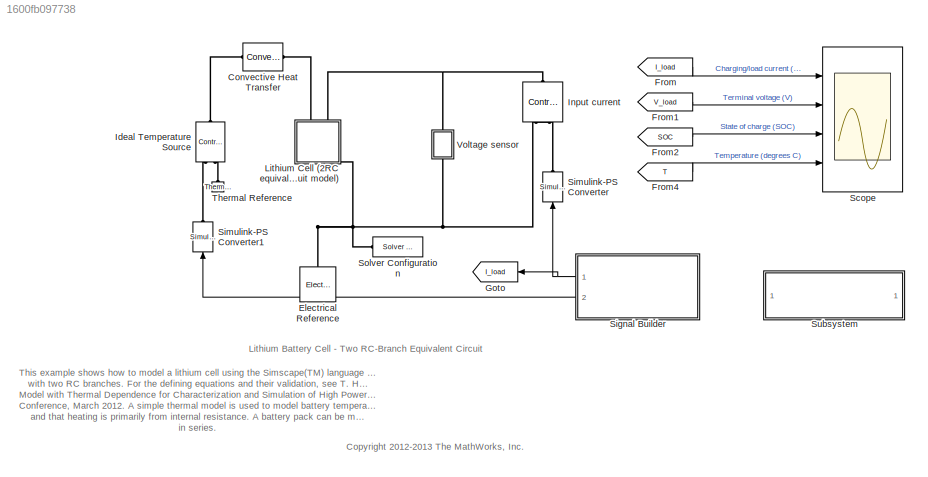
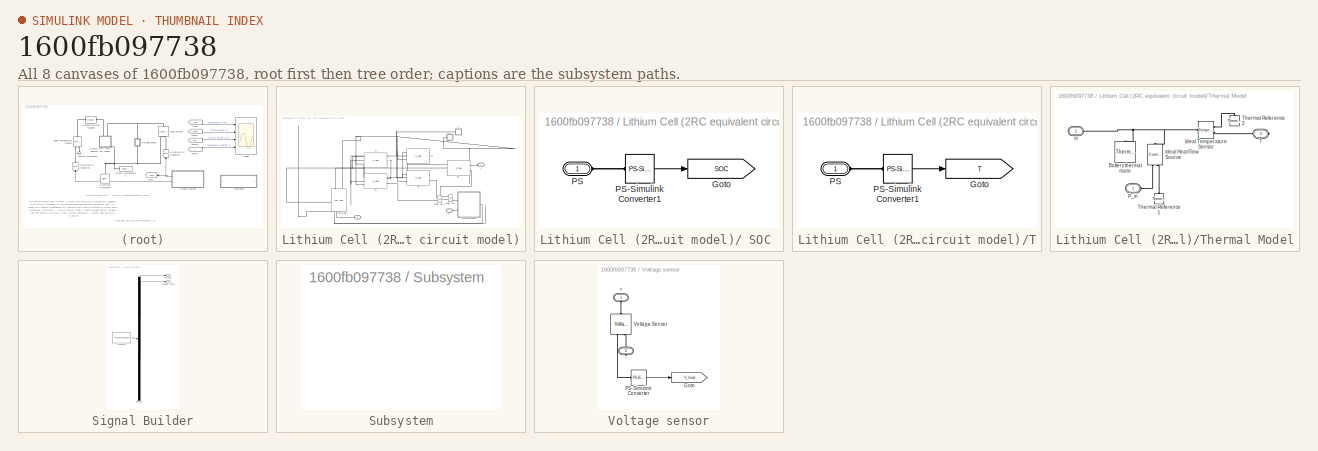
[diagram: thumbnail index - all 8 canvases of the model, root first then tree order]
MODEL slx_1600fb097738
KIND model
CONFIG AbsTol = auto
CONFIG EnableMultiTasking = on
CONFIG FixedStep = auto
CONFIG MaxStep = auto
CONFIG MinStep = auto
CONFIG PreLoadFcn = ssc_lithium_cell_2RC_ini
CONFIG RelTol = 1e-3
CONFIG SampleTimeConstraint = Unconstrained
CONFIG Solver = ode15s
CONFIG SolverName = ode15s
CONFIG StartTime = 0.0
CONFIG StopTime = 40000
BLOCK [Reference] Convective Heat Transfer  REF=fl_lib/Thermal/Thermal Elements/Convective Heat
Transfer
  Ports = [0, 0, 0, 0, 0, 1, 1]
  SourceBlock = fl_lib/Thermal/Thermal Elements/Convective Heat\nTransfer
  SourceProductBaseCode = SS
  SourceProductName = Simscape
  SourceType = Convective Heat\nTransfer
BLOCK [Reference] Electrical Reference  REF=fl_lib/Electrical/Electrical Elements/Electrical Reference
  Ports = [0, 0, 0, 0, 0, 1]
  SourceBlock = fl_lib/Electrical/Electrical Elements/Electrical Reference
  SourceProductBaseCode = SS
  SourceProductName = Simscape
  SourceType = Electrical Reference
BLOCK [From] From
  GotoTag = I_load
  TagVisibility = global
BLOCK [From] From1
  GotoTag = V_load
  TagVisibility = global
BLOCK [From] From2
  GotoTag = SOC
  TagVisibility = global
BLOCK [From] From4
  GotoTag = T
  TagVisibility = global
BLOCK [Goto] Goto
  GotoTag = I_load
  TagVisibility = global
BLOCK [Reference] Ideal Temperature Source  REF=fl_lib/Thermal/Thermal Sources/Controlled
Temperature Source
  Ports = [0, 0, 0, 0, 0, 1, 2]
  SourceBlock = fl_lib/Thermal/Thermal Sources/Controlled\nTemperature Source
  SourceProductBaseCode = SS
  SourceProductName = Simscape
  SourceType = Controlled\nTemperature Source
BLOCK [Reference] Input current  REF=fl_lib/Electrical/Electrical Sources/Controlled Current
Source
  Ports = [0, 0, 0, 0, 0, 1, 2]
  SourceBlock = fl_lib/Electrical/Electrical Sources/Controlled Current\nSource
  SourceProductBaseCode = SS
  SourceProductName = Simscape
  SourceType = Controlled Current\nSource
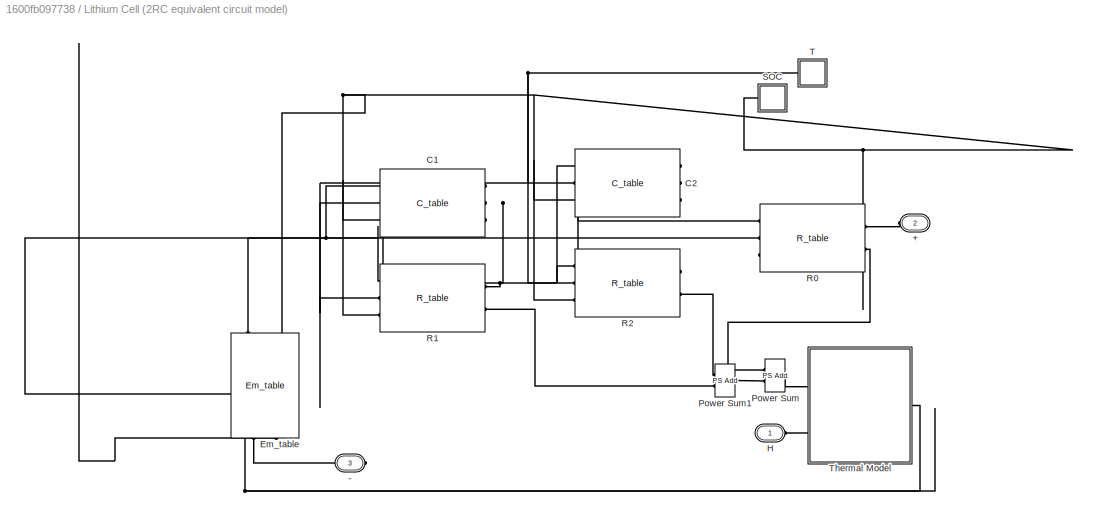
BLOCK [SubSystem] Lithium Cell (2RC equivalent circuit model)
  Ports = [0, 0, 0, 0, 0, 2, 1]
  RequestExecContextInheritance = off
BLOCK [SubSystem] Lithium Cell (2RC equivalent circuit model)/ SOC 
  Ports = [0, 0, 0, 0, 0, 1]
  RequestExecContextInheritance = off
BLOCK [Goto] Lithium Cell (2RC equivalent circuit model)/ SOC /Goto
  GotoTag = SOC
  TagVisibility = global
BLOCK [PMIOPort] Lithium Cell (2RC equivalent circuit model)/ SOC /PS
  Side = Left
BLOCK [Reference] Lithium Cell (2RC equivalent circuit model)/ SOC /PS-Simulink Converter1  REF=nesl_utility/PS-Simulink
Converter
  Ports = [0, 1, 0, 0, 0, 1]
  SourceBlock = nesl_utility/PS-Simulink\nConverter
  SourceProductBaseCode = SS
  SourceProductName = Simscape
  SourceType = PS-Simulink\nConverter
BLOCK [PMIOPort] Lithium Cell (2RC equivalent circuit model)/+
  Port = 2
  Side = Left
  Tag = PMCPort
BLOCK [PMIOPort] Lithium Cell (2RC equivalent circuit model)/-
  Port = 3
  Side = Right
  Tag = PMCPort
BLOCK [Reference] Lithium Cell (2RC equivalent circuit model)/C1  REF=LiBatteryElements_lib/C_table
  Ports = [0, 0, 0, 0, 0, 3, 1]
  SourceBlock = LiBatteryElements_lib/C_table
  SourceType = C_table
BLOCK [Reference] Lithium Cell (2RC equivalent circuit model)/C2  REF=LiBatteryElements_lib/C_table
  Ports = [0, 0, 0, 0, 0, 3, 1]
  SourceBlock = LiBatteryElements_lib/C_table
  SourceType = C_table
BLOCK [Reference] Lithium Cell (2RC equivalent circuit model)/Em_table  REF=LiBatteryElements_lib/Em_table
  Ports = [0, 0, 0, 0, 0, 3, 2]
  SourceBlock = LiBatteryElements_lib/Em_table
  SourceType = Em_table
BLOCK [PMIOPort] Lithium Cell (2RC equivalent circuit model)/H
  Side = Left
  Tag = PMCPort
BLOCK [Reference] Lithium Cell (2RC equivalent circuit model)/Power Sum  REF=fl_ps_legacy_lib/Legacy Physical
Signals/Functions/PS Add
  Ports = [0, 0, 0, 0, 0, 2, 1]
  SourceBlock = fl_ps_legacy_lib/Legacy Physical\nSignals/Functions/PS Add
  SourceProductBaseCode = SS
  SourceProductName = Simscape
  SourceType = PS Add
BLOCK [Reference] Lithium Cell (2RC equivalent circuit model)/Power Sum1  REF=fl_ps_legacy_lib/Legacy Physical
Signals/Functions/PS Add
  Ports = [0, 0, 0, 0, 0, 2, 1]
  SourceBlock = fl_ps_legacy_lib/Legacy Physical\nSignals/Functions/PS Add
  SourceProductBaseCode = SS
  SourceProductName = Simscape
  SourceType = PS Add
BLOCK [Reference] Lithium Cell (2RC equivalent circuit model)/R0  REF=LiBatteryElements_lib/R_table
  Ports = [0, 0, 0, 0, 0, 3, 2]
  SourceBlock = LiBatteryElements_lib/R_table
  SourceType = R_table
BLOCK [Reference] Lithium Cell (2RC equivalent circuit model)/R1  REF=LiBatteryElements_lib/R_table
  Ports = [0, 0, 0, 0, 0, 3, 2]
  SourceBlock = LiBatteryElements_lib/R_table
  SourceType = R_table
BLOCK [Reference] Lithium Cell (2RC equivalent circuit model)/R2  REF=LiBatteryElements_lib/R_table
  Ports = [0, 0, 0, 0, 0, 3, 2]
  SourceBlock = LiBatteryElements_lib/R_table
  SourceType = R_table
BLOCK [SubSystem] Lithium Cell (2RC equivalent circuit model)/T
  Ports = [0, 0, 0, 0, 0, 1]
  RequestExecContextInheritance = off
BLOCK [Goto] Lithium Cell (2RC equivalent circuit model)/T/Goto
  GotoTag = T
  TagVisibility = global
BLOCK [PMIOPort] Lithium Cell (2RC equivalent circuit model)/T/PS
  Side = Left
BLOCK [Reference] Lithium Cell (2RC equivalent circuit model)/T/PS-Simulink Converter1  REF=nesl_utility/PS-Simulink
Converter
  Ports = [0, 1, 0, 0, 0, 1]
  SourceBlock = nesl_utility/PS-Simulink\nConverter
  SourceProductBaseCode = SS
  SourceProductName = Simscape
  SourceType = PS-Simulink\nConverter
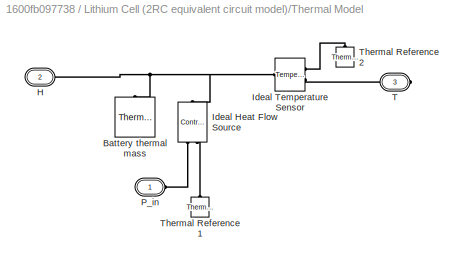
BLOCK [SubSystem] Lithium Cell (2RC equivalent circuit model)/Thermal Model
  Ports = [0, 0, 0, 0, 0, 2, 1]
  RequestExecContextInheritance = off
BLOCK [Reference] Lithium Cell (2RC equivalent circuit model)/Thermal Model/Battery thermal mass  REF=fl_lib/Thermal/Thermal Elements/Thermal Mass
  Ports = [0, 0, 0, 0, 0, 1]
  SourceBlock = fl_lib/Thermal/Thermal Elements/Thermal Mass
  SourceProductBaseCode = SS
  SourceProductName = Simscape
  SourceType = Thermal Mass
BLOCK [PMIOPort] Lithium Cell (2RC equivalent circuit model)/Thermal Model/H
  Port = 2
  Side = Left
  Tag = PMCPort
BLOCK [Reference] Lithium Cell (2RC equivalent circuit model)/Thermal Model/Ideal Heat Flow Source  REF=fl_lib/Thermal/Thermal Sources/Controlled Heat Flow
Rate Source
  Ports = [0, 0, 0, 0, 0, 1, 2]
  SourceBlock = fl_lib/Thermal/Thermal Sources/Controlled Heat Flow\nRate Source
  SourceProductBaseCode = SS
  SourceProductName = Simscape
  SourceType = Controlled Heat Flow\nRate Source
BLOCK [Reference] Lithium Cell (2RC equivalent circuit model)/Thermal Model/Ideal Temperature Sensor  REF=fl_lib/Thermal/Thermal Sensors/Temperature Sensor
  Ports = [0, 0, 0, 0, 0, 1, 2]
  SourceBlock = fl_lib/Thermal/Thermal Sensors/Temperature Sensor
  SourceProductBaseCode = SS
  SourceProductName = Simscape
  SourceType = Temperature Sensor
BLOCK [PMIOPort] Lithium Cell (2RC equivalent circuit model)/Thermal Model/P_in
  Side = Left
  Tag = PMCPort
BLOCK [PMIOPort] Lithium Cell (2RC equivalent circuit model)/Thermal Model/T
  Port = 3
  Side = Right
  Tag = PMCPort
BLOCK [Reference] Lithium Cell (2RC equivalent circuit model)/Thermal Model/Thermal Reference1  REF=fl_lib/Thermal/Thermal Elements/Thermal Reference
  Ports = [0, 0, 0, 0, 0, 1]
  SourceBlock = fl_lib/Thermal/Thermal Elements/Thermal Reference
  SourceProductBaseCode = SS
  SourceProductName = Simscape
  SourceType = Thermal Reference
BLOCK [Reference] Lithium Cell (2RC equivalent circuit model)/Thermal Model/Thermal Reference2  REF=fl_lib/Thermal/Thermal Elements/Thermal Reference
  Ports = [0, 0, 0, 0, 0, 1]
  SourceBlock = fl_lib/Thermal/Thermal Elements/Thermal Reference
  SourceProductBaseCode = SS
  SourceProductName = Simscape
  SourceType = Thermal Reference
BLOCK [Scope] Scope
  Floating = off
  NumInputPorts = 4
  Ports = [4]
  ScopeSpecificationString = C++SS(StrPVP('Location','[840, 52, 1370, 763]'),StrPVP('Open','off'),MxPVP('AxesTitles',54,'struct(''axes1'',''%<SignalLabel>'',''axes2'',''%<SignalLabel>'',''axes3'',''%<SignalLabel>'',''axes4'',''%<SignalLabel>'')'),MxPVP('ScopeGraphics',57,'struct(''FigureColor'',''[0.5 0.5 0.5]'',''AxesColor'',''[0 0 0]'',''AxesTickColor'',''[1 1 1]'',''LineColors'',''[1 1 0;1 0 1;0 1 1;1 0 0;0 1 0;0 0 1]'',''...<+421ch>
BLOCK [SubSystem] Signal Builder
  ClipboardFcn = sigbuilder_block('clipboard');
  CloseFcn = sigbuilder_block('close');
  ContinueFcn = sigbuilder_block('continue');
  CopyFcn = sigbuilder_block('copy');
  DeleteFcn = sigbuilder_block('delete');
  LoadFcn = sigbuilder_block('load');
  MaskHideContents = on
  ModelCloseFcn = sigbuilder_block('modelClose');
  NameChangeFcn = sigbuilder_block('namechange');
  OpenFcn = sigbuilder_block('open',[62.25 82.5 550.5 303 ]);
  PauseFcn = sigbuilder_block('pause');
  Ports = [0, 2]
  PreSaveFcn = sigbuilder_block('preSave');
  RequestExecContextInheritance = off
  StartFcn = sigbuilder_block('start');
  StopFcn = sigbuilder_block('stop');
  Tag = STV Subsys
BLOCK [Outport] Signal Builder/Ambient Temp
  IconDisplay = Port number
  Port = 2
  Tag = STV Outport
BLOCK [Outport] Signal Builder/Current
  IconDisplay = Port number
BLOCK [Demux] Signal Builder/Demux
  Outputs = 2
  Ports = [1, 2]
  Tag = STV Demux
BLOCK [FromWorkspace] Signal Builder/FromWs
  SampleTime = 0
  Tag = STV FromWs
  VariableName = tuvar
  ZeroCross = on
BLOCK [Reference] Simulink-PS Converter  REF=nesl_utility/Simulink-PS
Converter
  Ports = [1, 0, 0, 0, 0, 0, 1]
  SourceBlock = nesl_utility/Simulink-PS\nConverter
  SourceProductBaseCode = SS
  SourceProductName = Simscape
  SourceType = Simulink-PS\nConverter
BLOCK [Reference] Simulink-PS Converter1  REF=nesl_utility/Simulink-PS
Converter
  Ports = [1, 0, 0, 0, 0, 0, 1]
  SourceBlock = nesl_utility/Simulink-PS\nConverter
  SourceProductBaseCode = SS
  SourceProductName = Simscape
  SourceType = Simulink-PS\nConverter
BLOCK [Reference] Solver Configuration  REF=nesl_utility/Solver
Configuration
  Ports = [0, 0, 0, 0, 0, 0, 1]
  SourceBlock = nesl_utility/Solver\nConfiguration
  SourceProductBaseCode = SS
  SourceProductName = Simscape
  SourceType = Solver\nConfiguration
BLOCK [SubSystem] Subsystem
  OpenFcn = open('LiBatteryElements_lib.mdl')
  Ports = []
  RequestExecContextInheritance = off
BLOCK [Reference] Thermal Reference  REF=fl_lib/Thermal/Thermal Elements/Thermal Reference
  Ports = [0, 0, 0, 0, 0, 1]
  SourceBlock = fl_lib/Thermal/Thermal Elements/Thermal Reference
  SourceProductBaseCode = SS
  SourceProductName = Simscape
  SourceType = Thermal Reference
BLOCK [SubSystem] Voltage sensor
  Ports = [0, 0, 0, 0, 0, 1, 1]
  RequestExecContextInheritance = off
BLOCK [PMIOPort] Voltage sensor/+
  Side = Left
BLOCK [PMIOPort] Voltage sensor/-
  Port = 2
  Side = Right
BLOCK [Goto] Voltage sensor/Goto
  GotoTag = V_load
  TagVisibility = global
BLOCK [Reference] Voltage sensor/PS-Simulink Converter  REF=nesl_utility/PS-Simulink
Converter
  Ports = [0, 1, 0, 0, 0, 1]
  SourceBlock = nesl_utility/PS-Simulink\nConverter
  SourceProductBaseCode = SS
  SourceProductName = Simscape
  SourceType = PS-Simulink\nConverter
BLOCK [Reference] Voltage sensor/Voltage Sensor  REF=fl_lib/Electrical/Electrical Sensors/Voltage Sensor
  Ports = [0, 0, 0, 0, 0, 1, 2]
  SourceBlock = fl_lib/Electrical/Electrical Sensors/Voltage Sensor
  SourceProductBaseCode = SS
  SourceProductName = Simscape
  SourceType = Voltage Sensor
ANNOTATION (root): <copyright redacted>
ANNOTATION (root): Lithium Battery Cell - Two RC-Branch Equivalent Circuit
ANNOTATION (root): This example shows how to model a lithium cell using the Simscape(TM) language to implement the elements of an equivalent circuit model with two RC branches. For the defining equations and their validation, see T. Huria, M. Ceraolo, J. Gazzarri, R. Jackey. "High Fidelity Electrical Model with Thermal Dependence for Characterization and Simulation of High Power Lithium Battery Cells," IEEE Internat...<+316ch>
LINE From1:1 -> Scope:2
LINE From2:1 -> Scope:3
LINE From4:1 -> Scope:4
LINE From:1 -> Scope:1
LINE Lithium Cell (2RC equivalent circuit model)/ SOC /PS-Simulink Converter1:1 -> Lithium Cell (2RC equivalent circuit model)/ SOC /Goto:1
LINE Lithium Cell (2RC equivalent circuit model)/T/PS-Simulink Converter1:1 -> Lithium Cell (2RC equivalent circuit model)/T/Goto:1
NET Signal Builder:1 -> Goto:1, Simulink-PS Converter:1
LINE Signal Builder:2 -> Simulink-PS Converter1:1
LINE Voltage sensor/PS-Simulink Converter:1 -> Voltage sensor/Goto:1
PLINE Convective Heat Transfer:LConn1 -- Ideal Temperature Source:LConn1
PLINE Convective Heat Transfer:RConn1 -- Lithium Cell (2RC equivalent circuit model):LConn1
PNET net1: Electrical Reference:LConn1 -- Input current:RConn2 -- Lithium Cell (2RC equivalent circuit model):RConn1 -- Solver Configuration:RConn1 -- Voltage sensor:RConn1
PLINE Ideal Temperature Source:RConn1 -- Simulink-PS Converter1:RConn1
PLINE Ideal Temperature Source:RConn2 -- Thermal Reference:LConn1
PNET net2: Input current:LConn1 -- Lithium Cell (2RC equivalent circuit model):LConn2 -- Voltage sensor:LConn1
PLINE Input current:RConn1 -- Simulink-PS Converter:RConn1
PLINE Lithium Cell (2RC equivalent circuit model)/ SOC /PS-Simulink Converter1:LConn1 -- Lithium Cell (2RC equivalent circuit model)/ SOC /PS:RConn1
PNET net3: Lithium Cell (2RC equivalent circuit model)/ SOC :LConn1 -- Lithium Cell (2RC equivalent circuit model)/C1:LConn3 -- Lithium Cell (2RC equivalent circuit model)/C2:LConn3 -- Lithium Cell (2RC equivalent circuit model)/Em_table:LConn3 -- Lithium Cell (2RC equivalent circuit model)/R0:LConn3 -- Lithium Cell (2RC equivalent circuit model)/R1:LConn3 -- Lithium Cell (2RC equivalent circuit model)/R2:LConn3
PLINE Lithium Cell (2RC equivalent circuit model)/+:RConn1 -- Lithium Cell (2RC equivalent circuit model)/R0:RConn1
PLINE Lithium Cell (2RC equivalent circuit model)/-:RConn1 -- Lithium Cell (2RC equivalent circuit model)/Em_table:RConn1
PNET net4: Lithium Cell (2RC equivalent circuit model)/C1:LConn1 -- Lithium Cell (2RC equivalent circuit model)/Em_table:LConn1 -- Lithium Cell (2RC equivalent circuit model)/R1:LConn1
PNET net5: Lithium Cell (2RC equivalent circuit model)/C1:LConn2 -- Lithium Cell (2RC equivalent circuit model)/C2:LConn2 -- Lithium Cell (2RC equivalent circuit model)/Em_table:RConn2 -- Lithium Cell (2RC equivalent circuit model)/R0:LConn2 -- Lithium Cell (2RC equivalent circuit model)/R1:LConn2 -- Lithium Cell (2RC equivalent circuit model)/R2:LConn2 -- Lithium Cell (2RC equivalent circuit model)/T:LConn1 -- Lithium Cell (2RC equivalent circuit model)/Thermal Model:RConn1
PNET net6: Lithium Cell (2RC equivalent circuit model)/C1:RConn1 -- Lithium Cell (2RC equivalent circuit model)/C2:LConn1 -- Lithium Cell (2RC equivalent circuit model)/R1:RConn1 -- Lithium Cell (2RC equivalent circuit model)/R2:LConn1
PNET net7: Lithium Cell (2RC equivalent circuit model)/C2:RConn1 -- Lithium Cell (2RC equivalent circuit model)/R0:LConn1 -- Lithium Cell (2RC equivalent circuit model)/R2:RConn1
PLINE Lithium Cell (2RC equivalent circuit model)/H:RConn1 -- Lithium Cell (2RC equivalent circuit model)/Thermal Model:LConn2
PLINE Lithium Cell (2RC equivalent circuit model)/Power Sum1:LConn1 -- Lithium Cell (2RC equivalent circuit model)/R2:RConn2
PLINE Lithium Cell (2RC equivalent circuit model)/Power Sum1:LConn2 -- Lithium Cell (2RC equivalent circuit model)/R1:RConn2
PLINE Lithium Cell (2RC equivalent circuit model)/Power Sum1:RConn1 -- Lithium Cell (2RC equivalent circuit model)/Power Sum:LConn2
PLINE Lithium Cell (2RC equivalent circuit model)/Power Sum:LConn1 -- Lithium Cell (2RC equivalent circuit model)/R0:RConn2
PLINE Lithium Cell (2RC equivalent circuit model)/Power Sum:RConn1 -- Lithium Cell (2RC equivalent circuit model)/Thermal Model:LConn1
PLINE Lithium Cell (2RC equivalent circuit model)/T/PS-Simulink Converter1:LConn1 -- Lithium Cell (2RC equivalent circuit model)/T/PS:RConn1
PNET net8: Lithium Cell (2RC equivalent circuit model)/Thermal Model/Battery thermal mass:LConn1 -- Lithium Cell (2RC equivalent circuit model)/Thermal Model/H:RConn1 -- Lithium Cell (2RC equivalent circuit model)/Thermal Model/Ideal Heat Flow Source:LConn1 -- Lithium Cell (2RC equivalent circuit model)/Thermal Model/Ideal Temperature Sensor:LConn1
PLINE Lithium Cell (2RC equivalent circuit model)/Thermal Model/Ideal Heat Flow Source:RConn1 -- Lithium Cell (2RC equivalent circuit model)/Thermal Model/P_in:RConn1
PLINE Lithium Cell (2RC equivalent circuit model)/Thermal Model/Ideal Heat Flow Source:RConn2 -- Lithium Cell (2RC equivalent circuit model)/Thermal Model/Thermal Reference1:LConn1
PLINE Lithium Cell (2RC equivalent circuit model)/Thermal Model/Ideal Temperature Sensor:RConn1 -- Lithium Cell (2RC equivalent circuit model)/Thermal Model/Thermal Reference2:LConn1
PLINE Lithium Cell (2RC equivalent circuit model)/Thermal Model/Ideal Temperature Sensor:RConn2 -- Lithium Cell (2RC equivalent circuit model)/Thermal Model/T:RConn1
PLINE Voltage sensor/+:RConn1 -- Voltage sensor/Voltage Sensor:LConn1
PLINE Voltage sensor/-:RConn1 -- Voltage sensor/Voltage Sensor:RConn2
PLINE Voltage sensor/PS-Simulink Converter:LConn1 -- Voltage sensor/Voltage Sensor:RConn1
note: NET lines group one-source signal fan-out (src -> all destinations, sorted); 1:1 wires keep LINE; PNET lines group multi-terminal physical nets as a canonical sorted terminal list (undirected conserving connections); 2-terminal nets keep the pairwise PLINE form
